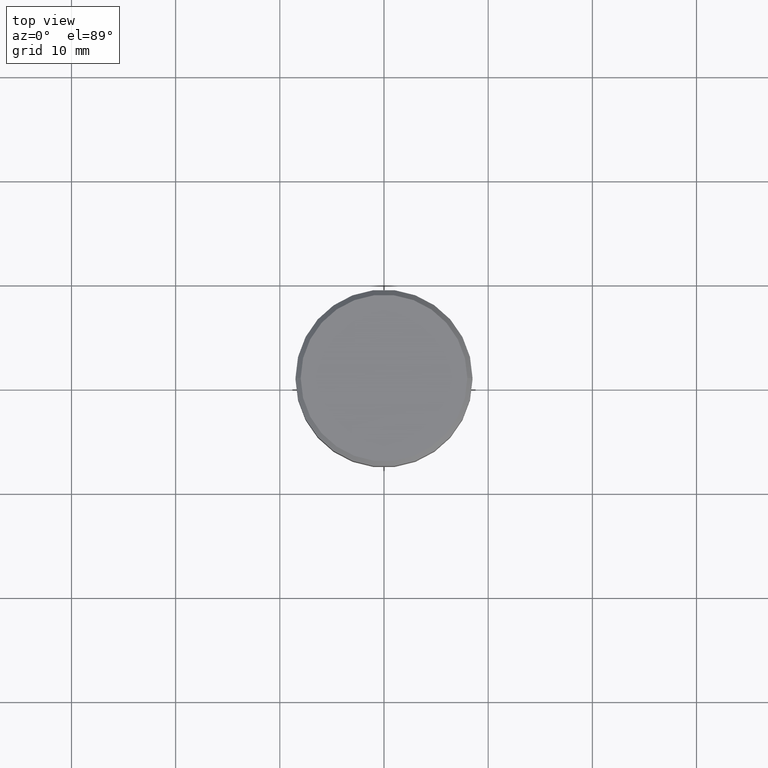
[diagram: clean part render]
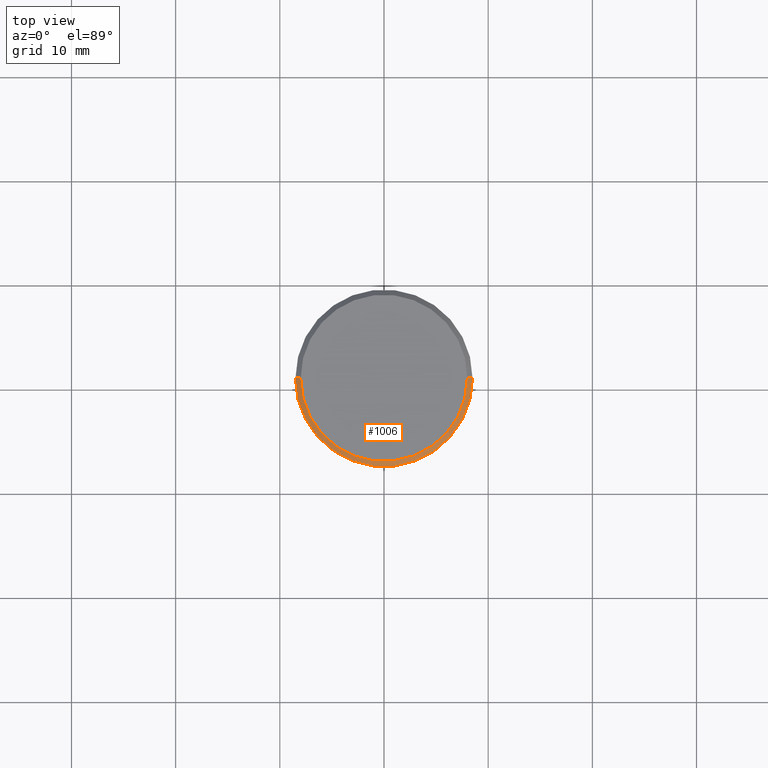
[diagram: same view with one face highlighted and labeled with its STEP entity id]
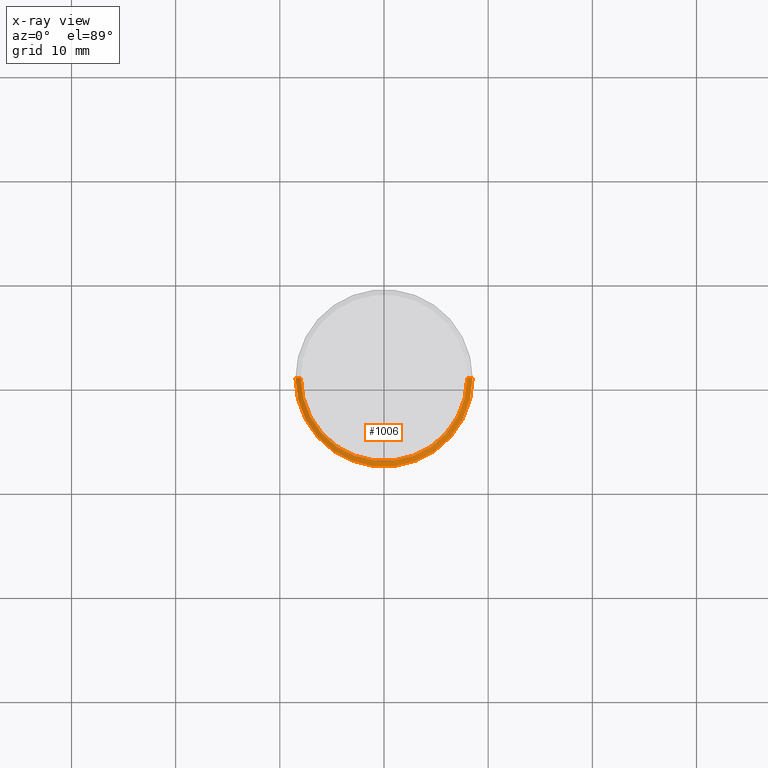
[diagram: x-ray of the same camera — body ghosted, the highlighted face saturated]
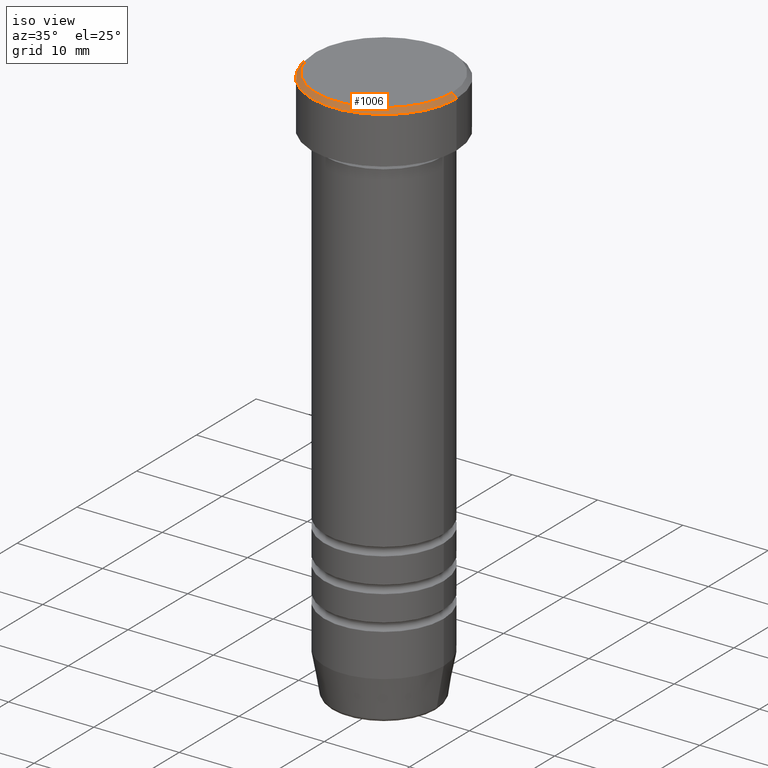
[diagram: same view with one face highlighted and labeled with its STEP entity id]
A machine part, top view. The second image highlights one B-rep face of the part: STEP entity #1006.
The next image is the same camera in x-ray: the body ghosted, the highlighted face saturated — about 0% of this face is hidden behind the body in this view.
A second angle (iso view) of the same face is appended — the face is thin or edge-on in the first view.
In plain terms, the highlighted conical surface has half-angle 45 deg.
Its self-contained STEP definition (entity closure, byte-faithful):
#51 = ORIENTED_EDGE ( 'NONE', *, *, #283, .T. ) ;
#72 = EDGE_CURVE ( 'NONE', #1034, #434, #81, .T. ) ;
#81 = LINE ( 'NONE', #531, #569 ) ;
#91 = DIRECTION ( 'NONE',  ( 0.7071067811865487940, 8.659560562354950115E-17, -0.7071067811865463515 ) ) ;
#93 = CARTESIAN_POINT ( 'NONE',  ( 0.000000000000000000, 0.000000000000000000, -0.4999999999999987232 ) ) ;
#103 = DIRECTION ( 'NONE',  ( 1.000000000000000000, 0.000000000000000000, 0.000000000000000000 ) ) ;
#156 = AXIS2_PLACEMENT_3D ( 'NONE', #638, #368, #971 ) ;
#172 = VERTEX_POINT ( 'NONE', #635 ) ;
#186 = LINE ( 'NONE', #1005, #382 ) ;
#229 = ORIENTED_EDGE ( 'NONE', *, *, #730, .F. ) ;
#241 = ORIENTED_EDGE ( 'NONE', *, *, #939, .F. ) ;
#272 = FACE_OUTER_BOUND ( 'NONE', #666, .T. ) ;
#283 = EDGE_CURVE ( 'NONE', #172, #1060, #186, .T. ) ;
#300 = DIRECTION ( 'NONE',  ( -0.000000000000000000, -0.000000000000000000, 1.000000000000000000 ) ) ;
#365 = CIRCLE ( 'NONE', #856, 8.000000000000000000 ) ;
#368 = DIRECTION ( 'NONE',  ( 0.000000000000000000, 0.000000000000000000, -1.000000000000000000 ) ) ;
#382 = VECTOR ( 'NONE', #565, 1000.000000000000000 ) ;
#434 = VERTEX_POINT ( 'NONE', #685 ) ;
#531 = CARTESIAN_POINT ( 'NONE',  ( 8.000000000000000000, 9.797174393178825657E-16, 0.000000000000000000 ) ) ;
#549 = DIRECTION ( 'NONE',  ( 0.000000000000000000, 0.000000000000000000, -1.000000000000000000 ) ) ;
#565 = DIRECTION ( 'NONE',  ( -0.7071067811865487940, 0.000000000000000000, -0.7071067811865463515 ) ) ;
#569 = VECTOR ( 'NONE', #91, 1000.000000000000000 ) ;
#635 = CARTESIAN_POINT ( 'NONE',  ( -8.000000000000000000, 0.000000000000000000, 0.000000000000000000 ) ) ;
#638 = CARTESIAN_POINT ( 'NONE',  ( 0.000000000000000000, 0.000000000000000000, 0.000000000000000000 ) ) ;
#666 = EDGE_LOOP ( 'NONE', ( #1115, #229, #51, #241 ) ) ;
#671 = DIRECTION ( 'NONE',  ( 1.000000000000000000, 0.000000000000000000, 0.000000000000000000 ) ) ;
#685 = CARTESIAN_POINT ( 'NONE',  ( 8.500000000000000000, 0.000000000000000000, -0.4999999999999987232 ) ) ;
#730 = EDGE_CURVE ( 'NONE', #172, #1034, #365, .T. ) ;
#811 = CARTESIAN_POINT ( 'NONE',  ( -8.500000000000000000, 1.040949779275250140E-15, -0.4999999999999987232 ) ) ;
#838 = AXIS2_PLACEMENT_3D ( 'NONE', #93, #549, #103 ) ;
#856 = AXIS2_PLACEMENT_3D ( 'NONE', #1097, #300, #671 ) ;
#875 = CONICAL_SURFACE ( 'NONE', #156, 8.000000000000000000, 0.7853981633974500554 ) ;
#939 = EDGE_CURVE ( 'NONE', #434, #1060, #1122, .T. ) ;
#971 = DIRECTION ( 'NONE',  ( -1.000000000000000000, 0.000000000000000000, 0.000000000000000000 ) ) ;
#1005 = CARTESIAN_POINT ( 'NONE',  ( -8.000000000000000000, 0.000000000000000000, 0.000000000000000000 ) ) ;
#1006 = ADVANCED_FACE ( 'NONE', ( #272 ), #875, .T. ) ;
#1034 = VERTEX_POINT ( 'NONE', #1061 ) ;
#1060 = VERTEX_POINT ( 'NONE', #811 ) ;
#1061 = CARTESIAN_POINT ( 'NONE',  ( 8.000000000000000000, 1.010333609296566550E-15, 0.000000000000000000 ) ) ;
#1097 = CARTESIAN_POINT ( 'NONE',  ( 0.000000000000000000, 0.000000000000000000, 0.000000000000000000 ) ) ;
#1115 = ORIENTED_EDGE ( 'NONE', *, *, #72, .F. ) ;
#1122 = CIRCLE ( 'NONE', #838, 8.500000000000000000 ) ;